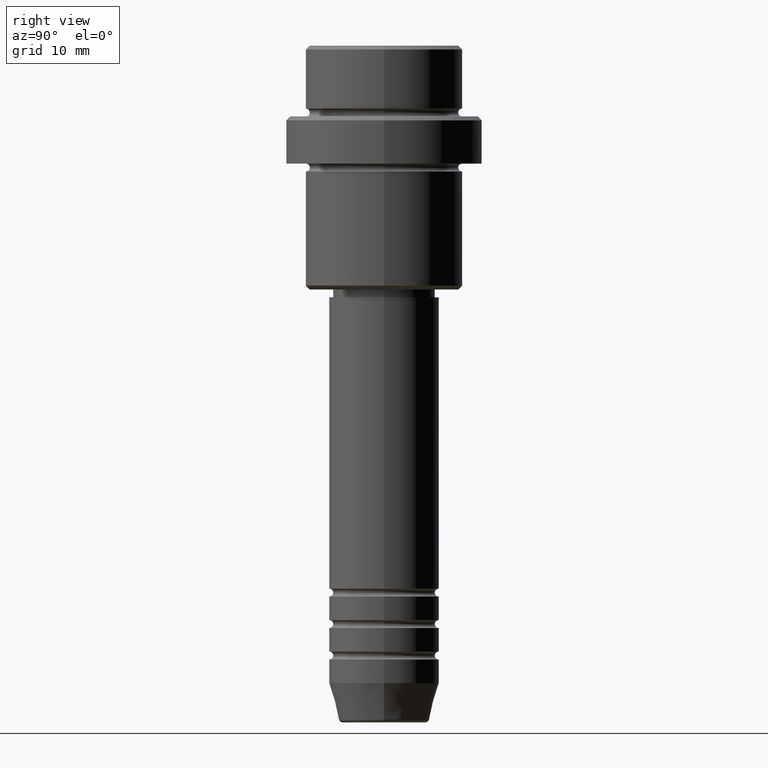
[diagram: clean part render]
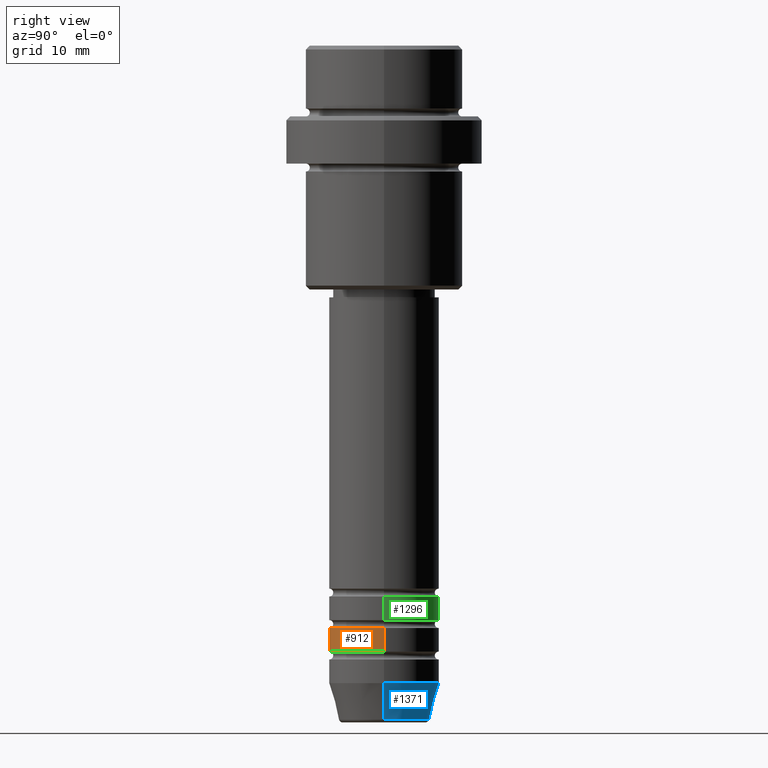
[diagram: same view with three faces highlighted in distinct colors, each labeled with its STEP entity id]
A machine part, right view with three faces highlighted in distinct colors.
Their STEP definitions:

[orange] entity #912 — the highlighted cylindrical surface (partial cylindrical patch) has radius 7 mm, axis along (-0, -0, 1).
#29 = LINE ( 'NONE', #1332, #1052 ) ;
#63 = CYLINDRICAL_SURFACE ( 'NONE', #756, 7.000000000000000000 ) ;
#84 = VERTEX_POINT ( 'NONE', #1278 ) ;
#150 = ORIENTED_EDGE ( 'NONE', *, *, #653, .F. ) ;
#158 = DIRECTION ( 'NONE',  ( -0.000000000000000000, -0.000000000000000000, 1.000000000000000000 ) ) ;
#246 = DIRECTION ( 'NONE',  ( -0.000000000000000000, -0.000000000000000000, 1.000000000000000000 ) ) ;
#250 = ORIENTED_EDGE ( 'NONE', *, *, #323, .T. ) ;
#262 = CIRCLE ( 'NONE', #1053, 7.000000000000000000 ) ;
#285 = CIRCLE ( 'NONE', #1307, 7.000000000000000000 ) ;
#323 = EDGE_CURVE ( 'NONE', #84, #360, #29, .T. ) ;
#353 = VERTEX_POINT ( 'NONE', #1225 ) ;
#360 = VERTEX_POINT ( 'NONE', #519 ) ;
#383 = DIRECTION ( 'NONE',  ( 1.000000000000000000, 0.000000000000000000, 0.000000000000000000 ) ) ;
#445 = EDGE_CURVE ( 'NONE', #468, #84, #285, .T. ) ;
#468 = VERTEX_POINT ( 'NONE', #1266 ) ;
#519 = CARTESIAN_POINT ( 'NONE',  ( 7.000000000000000000, 0.000000000000000000, -73.99999999999990052 ) ) ;
#531 = FACE_OUTER_BOUND ( 'NONE', #532, .T. ) ;
#532 = EDGE_LOOP ( 'NONE', ( #150, #755, #250, #1129 ) ) ;
#559 = LINE ( 'NONE', #795, #1054 ) ;
#653 = EDGE_CURVE ( 'NONE', #468, #353, #559, .T. ) ;
#691 = DIRECTION ( 'NONE',  ( -0.000000000000000000, -0.000000000000000000, 1.000000000000000000 ) ) ;
#755 = ORIENTED_EDGE ( 'NONE', *, *, #445, .T. ) ;
#756 = AXIS2_PLACEMENT_3D ( 'NONE', #1287, #1063, #1161 ) ;
#795 = CARTESIAN_POINT ( 'NONE',  ( -7.000000000000000000, 8.572527594031473190E-16, 0.000000000000000000 ) ) ;
#912 = ADVANCED_FACE ( 'NONE', ( #531 ), #63, .T. ) ;
#957 = CARTESIAN_POINT ( 'NONE',  ( 0.000000000000000000, 0.000000000000000000, -73.99999999999990052 ) ) ;
#1032 = CARTESIAN_POINT ( 'NONE',  ( 0.000000000000000000, 0.000000000000000000, -76.99999999999988631 ) ) ;
#1052 = VECTOR ( 'NONE', #691, 1000.000000000000000 ) ;
#1053 = AXIS2_PLACEMENT_3D ( 'NONE', #957, #1374, #1369 ) ;
#1054 = VECTOR ( 'NONE', #246, 1000.000000000000000 ) ;
#1063 = DIRECTION ( 'NONE',  ( -0.000000000000000000, -0.000000000000000000, 1.000000000000000000 ) ) ;
#1129 = ORIENTED_EDGE ( 'NONE', *, *, #1375, .F. ) ;
#1161 = DIRECTION ( 'NONE',  ( 1.000000000000000000, 0.000000000000000000, 0.000000000000000000 ) ) ;
#1225 = CARTESIAN_POINT ( 'NONE',  ( -7.000000000000000000, 8.572527594031473190E-16, -73.99999999999990052 ) ) ;
#1266 = CARTESIAN_POINT ( 'NONE',  ( -7.000000000000000000, 8.572527594031473190E-16, -76.99999999999988631 ) ) ;
#1278 = CARTESIAN_POINT ( 'NONE',  ( 7.000000000000000000, 0.000000000000000000, -76.99999999999988631 ) ) ;
#1287 = CARTESIAN_POINT ( 'NONE',  ( 0.000000000000000000, 0.000000000000000000, 0.000000000000000000 ) ) ;
#1307 = AXIS2_PLACEMENT_3D ( 'NONE', #1032, #158, #383 ) ;
#1332 = CARTESIAN_POINT ( 'NONE',  ( 7.000000000000000000, 0.000000000000000000, 0.000000000000000000 ) ) ;
#1369 = DIRECTION ( 'NONE',  ( 1.000000000000000000, 0.000000000000000000, 0.000000000000000000 ) ) ;
#1374 = DIRECTION ( 'NONE',  ( -0.000000000000000000, -0.000000000000000000, 1.000000000000000000 ) ) ;
#1375 = EDGE_CURVE ( 'NONE', #353, #360, #262, .T. ) ;

[blue] entity #1371 — the highlighted conical surface has half-angle 15 deg.
#7 = CARTESIAN_POINT ( 'NONE',  ( 5.759553456999439547, 0.000000000000000000, -85.62940952255124216 ) ) ;
#36 = EDGE_CURVE ( 'NONE', #1407, #1175, #1185, .T. ) ;
#69 = DIRECTION ( 'NONE',  ( 1.000000000000000000, 0.000000000000000000, 0.000000000000000000 ) ) ;
#127 = VERTEX_POINT ( 'NONE', #7 ) ;
#157 = DIRECTION ( 'NONE',  ( 1.000000000000000000, 0.000000000000000000, 0.000000000000000000 ) ) ;
#164 = DIRECTION ( 'NONE',  ( -0.000000000000000000, -0.000000000000000000, 1.000000000000000000 ) ) ;
#193 = ORIENTED_EDGE ( 'NONE', *, *, #602, .F. ) ;
#213 = CARTESIAN_POINT ( 'NONE',  ( 0.000000000000000000, 0.000000000000000000, -85.62940952255124216 ) ) ;
#224 = LINE ( 'NONE', #1011, #970 ) ;
#260 = DIRECTION ( 'NONE',  ( -0.2588190451025213501, 3.169619151431772337E-17, 0.9659258262890680902 ) ) ;
#286 = CARTESIAN_POINT ( 'NONE',  ( -5.759553456999439547, 7.812973149831954731E-16, -85.62940952255124216 ) ) ;
#288 = EDGE_CURVE ( 'NONE', #1010, #1175, #998, .T. ) ;
#355 = EDGE_LOOP ( 'NONE', ( #769, #782, #1365, #193 ) ) ;
#388 = DIRECTION ( 'NONE',  ( -0.000000000000000000, -0.000000000000000000, 1.000000000000000000 ) ) ;
#393 = DIRECTION ( 'NONE',  ( -0.000000000000000000, -0.000000000000000000, 1.000000000000000000 ) ) ;
#451 = AXIS2_PLACEMENT_3D ( 'NONE', #1373, #393, #69 ) ;
#602 = EDGE_CURVE ( 'NONE', #127, #1407, #224, .T. ) ;
#636 = CARTESIAN_POINT ( 'NONE',  ( 0.000000000000000000, 0.000000000000000000, -81.00000000000000000 ) ) ;
#639 = CIRCLE ( 'NONE', #709, 5.759553456999439547 ) ;
#680 = EDGE_CURVE ( 'NONE', #127, #1010, #639, .T. ) ;
#709 = AXIS2_PLACEMENT_3D ( 'NONE', #213, #388, #157 ) ;
#748 = AXIS2_PLACEMENT_3D ( 'NONE', #636, #164, #941 ) ;
#768 = DIRECTION ( 'NONE',  ( 0.2588190451025213501, 0.000000000000000000, 0.9659258262890680902 ) ) ;
#769 = ORIENTED_EDGE ( 'NONE', *, *, #680, .T. ) ;
#782 = ORIENTED_EDGE ( 'NONE', *, *, #288, .T. ) ;
#903 = VECTOR ( 'NONE', #260, 1000.000000000000000 ) ;
#941 = DIRECTION ( 'NONE',  ( 1.000000000000000000, 0.000000000000000000, 0.000000000000000000 ) ) ;
#970 = VECTOR ( 'NONE', #768, 1000.000000000000000 ) ;
#998 = LINE ( 'NONE', #1209, #903 ) ;
#1010 = VERTEX_POINT ( 'NONE', #286 ) ;
#1011 = CARTESIAN_POINT ( 'NONE',  ( 7.000000000000000000, 0.000000000000000000, -81.00000000000000000 ) ) ;
#1140 = FACE_OUTER_BOUND ( 'NONE', #355, .T. ) ;
#1175 = VERTEX_POINT ( 'NONE', #1213 ) ;
#1185 = CIRCLE ( 'NONE', #451, 7.000000000000000000 ) ;
#1209 = CARTESIAN_POINT ( 'NONE',  ( -7.000000000000000000, 8.572527594031473190E-16, -81.00000000000000000 ) ) ;
#1213 = CARTESIAN_POINT ( 'NONE',  ( -7.000000000000000000, 8.572527594031473190E-16, -81.00000000000000000 ) ) ;
#1365 = ORIENTED_EDGE ( 'NONE', *, *, #36, .F. ) ;
#1371 = ADVANCED_FACE ( 'NONE', ( #1140 ), #1397, .T. ) ;
#1373 = CARTESIAN_POINT ( 'NONE',  ( 0.000000000000000000, 0.000000000000000000, -81.00000000000000000 ) ) ;
#1389 = CARTESIAN_POINT ( 'NONE',  ( 7.000000000000000000, 0.000000000000000000, -81.00000000000000000 ) ) ;
#1397 = CONICAL_SURFACE ( 'NONE', #748, 7.000000000000000000, 0.2617993877991500740 ) ;
#1407 = VERTEX_POINT ( 'NONE', #1389 ) ;

[green] entity #1296 — the highlighted cylindrical surface (partial cylindrical patch) has radius 7 mm, axis along (-0, -0, 1).
#52 = AXIS2_PLACEMENT_3D ( 'NONE', #1061, #195, #1383 ) ;
#64 = CARTESIAN_POINT ( 'NONE',  ( -7.000000000000000000, 8.572527594031473190E-16, -72.99999999999990052 ) ) ;
#155 = FACE_OUTER_BOUND ( 'NONE', #1009, .T. ) ;
#186 = CARTESIAN_POINT ( 'NONE',  ( -7.000000000000000000, 8.572527594031473190E-16, 0.000000000000000000 ) ) ;
#195 = DIRECTION ( 'NONE',  ( -0.000000000000000000, -0.000000000000000000, 1.000000000000000000 ) ) ;
#356 = VERTEX_POINT ( 'NONE', #64 ) ;
#486 = CYLINDRICAL_SURFACE ( 'NONE', #1188, 7.000000000000000000 ) ;
#492 = DIRECTION ( 'NONE',  ( 1.000000000000000000, 0.000000000000000000, 0.000000000000000000 ) ) ;
#530 = EDGE_CURVE ( 'NONE', #1145, #356, #1264, .T. ) ;
#564 = CARTESIAN_POINT ( 'NONE',  ( 0.000000000000000000, 0.000000000000000000, -72.99999999999990052 ) ) ;
#618 = VECTOR ( 'NONE', #1341, 1000.000000000000000 ) ;
#622 = LINE ( 'NONE', #186, #702 ) ;
#645 = ORIENTED_EDGE ( 'NONE', *, *, #1324, .F. ) ;
#658 = CARTESIAN_POINT ( 'NONE',  ( 7.000000000000000000, 0.000000000000000000, -72.99999999999990052 ) ) ;
#693 = CARTESIAN_POINT ( 'NONE',  ( -7.000000000000000000, 8.572527594031473190E-16, -69.99999999999990052 ) ) ;
#702 = VECTOR ( 'NONE', #1154, 1000.000000000000000 ) ;
#719 = LINE ( 'NONE', #803, #618 ) ;
#790 = DIRECTION ( 'NONE',  ( 1.000000000000000000, 0.000000000000000000, 0.000000000000000000 ) ) ;
#793 = ORIENTED_EDGE ( 'NONE', *, *, #530, .T. ) ;
#803 = CARTESIAN_POINT ( 'NONE',  ( 7.000000000000000000, 0.000000000000000000, 0.000000000000000000 ) ) ;
#845 = EDGE_CURVE ( 'NONE', #1145, #1200, #719, .T. ) ;
#858 = ORIENTED_EDGE ( 'NONE', *, *, #1360, .T. ) ;
#965 = CIRCLE ( 'NONE', #52, 7.000000000000000000 ) ;
#1009 = EDGE_LOOP ( 'NONE', ( #793, #858, #645, #1113 ) ) ;
#1023 = CARTESIAN_POINT ( 'NONE',  ( 0.000000000000000000, 0.000000000000000000, 0.000000000000000000 ) ) ;
#1061 = CARTESIAN_POINT ( 'NONE',  ( 0.000000000000000000, 0.000000000000000000, -69.99999999999990052 ) ) ;
#1113 = ORIENTED_EDGE ( 'NONE', *, *, #845, .F. ) ;
#1128 = CARTESIAN_POINT ( 'NONE',  ( 7.000000000000000000, 0.000000000000000000, -69.99999999999990052 ) ) ;
#1145 = VERTEX_POINT ( 'NONE', #658 ) ;
#1154 = DIRECTION ( 'NONE',  ( -0.000000000000000000, -0.000000000000000000, 1.000000000000000000 ) ) ;
#1188 = AXIS2_PLACEMENT_3D ( 'NONE', #1023, #1350, #492 ) ;
#1195 = DIRECTION ( 'NONE',  ( -0.000000000000000000, -0.000000000000000000, 1.000000000000000000 ) ) ;
#1196 = VERTEX_POINT ( 'NONE', #693 ) ;
#1200 = VERTEX_POINT ( 'NONE', #1128 ) ;
#1264 = CIRCLE ( 'NONE', #1380, 7.000000000000000000 ) ;
#1296 = ADVANCED_FACE ( 'NONE', ( #155 ), #486, .T. ) ;
#1324 = EDGE_CURVE ( 'NONE', #1200, #1196, #965, .T. ) ;
#1341 = DIRECTION ( 'NONE',  ( -0.000000000000000000, -0.000000000000000000, 1.000000000000000000 ) ) ;
#1350 = DIRECTION ( 'NONE',  ( -0.000000000000000000, -0.000000000000000000, 1.000000000000000000 ) ) ;
#1360 = EDGE_CURVE ( 'NONE', #356, #1196, #622, .T. ) ;
#1380 = AXIS2_PLACEMENT_3D ( 'NONE', #564, #1195, #790 ) ;
#1383 = DIRECTION ( 'NONE',  ( 1.000000000000000000, 0.000000000000000000, 0.000000000000000000 ) ) ;